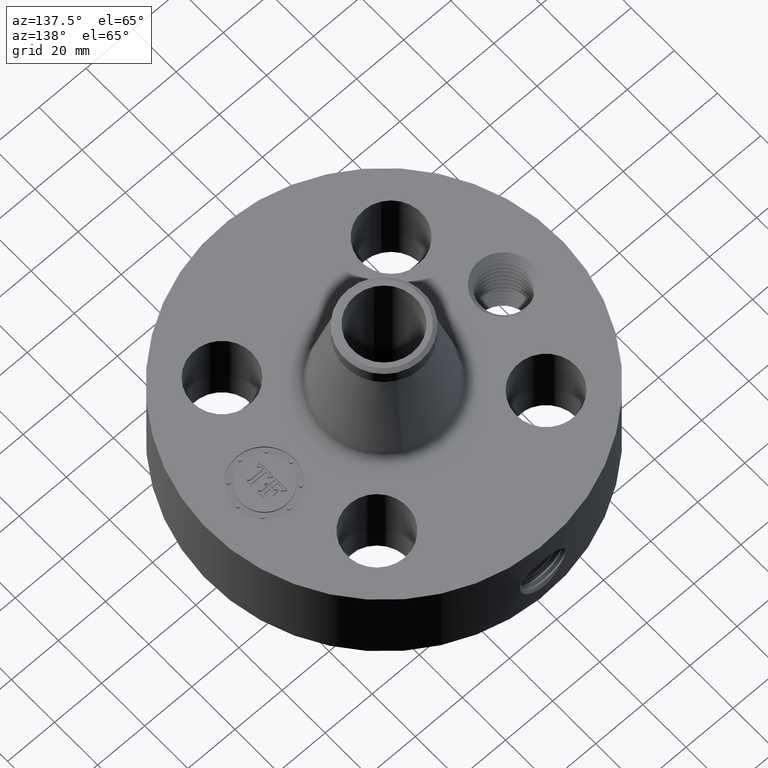
[diagram: clean part render]
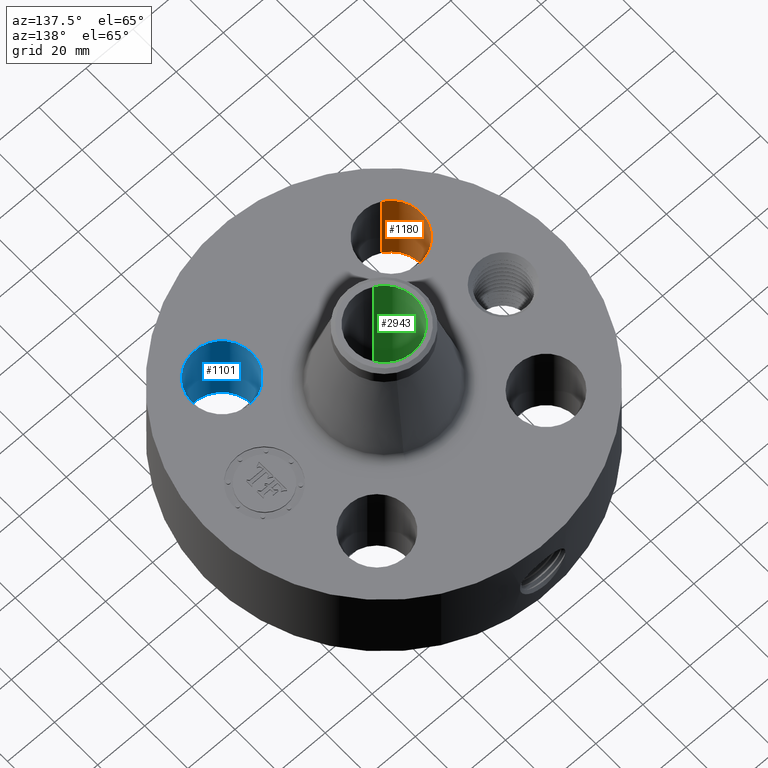
[diagram: same view with three faces highlighted in distinct colors, each labeled with its STEP entity id]
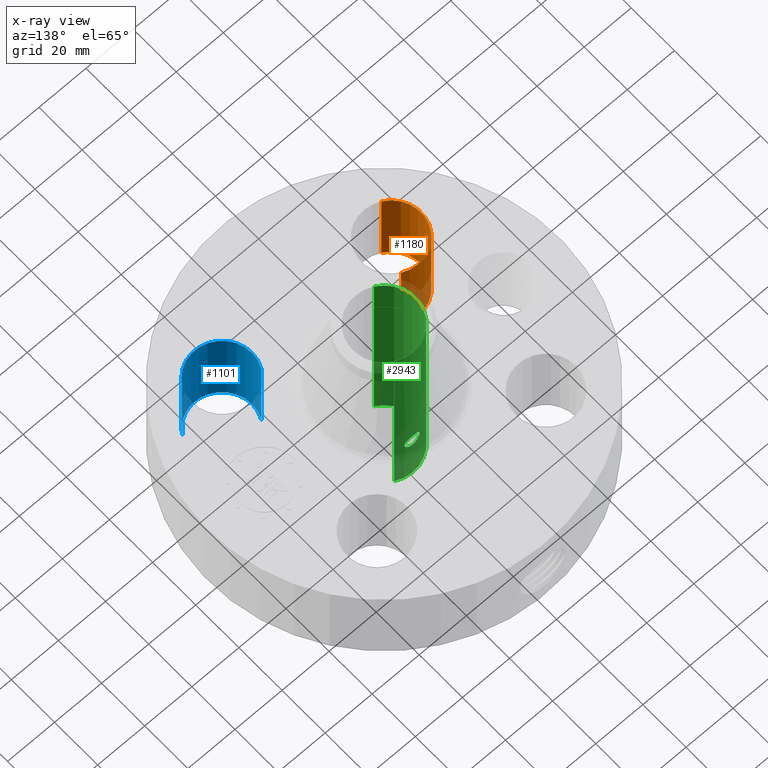
[diagram: x-ray of the same camera — body ghosted, the three highlighted faces saturated]
A machine part, auxiliary view with three faces highlighted in distinct colors.
The next image is the same camera in x-ray (body ghosted, the three faces saturated) — at least one of them is partly hidden behind the body in this view.
Their STEP definitions:

[orange] entity #1180 — the highlighted cylindrical surface (partial cylindrical patch) has radius 12.7 mm, axis along (0, -0, -1).
#272=AXIS2_PLACEMENT_3D('Circle Axis2P3D',#270,#271,$) ;
#511=AXIS2_PLACEMENT_3D('Circle Axis2P3D',#509,#510,$) ;
#1155=AXIS2_PLACEMENT_3D('Cylinder Axis2P3D',#1152,#1153,#1154) ;
#265=CARTESIAN_POINT('Vertex',(-1.17450079308,-0.975422281432,0.250000000001)) ;
#267=CARTESIAN_POINT('Vertex',(-1.65392633168,-1.85300484333,0.250000000001)) ;
#270=CARTESIAN_POINT('Axis2P3D Location',(-1.41421356238,-1.41421356238,0.250000000001)) ;
#509=CARTESIAN_POINT('Axis2P3D Location',(-1.41421356238,-1.41421356238,1.75000000001)) ;
#513=CARTESIAN_POINT('Vertex',(-1.65392633168,-1.85300484333,1.75000000001)) ;
#515=CARTESIAN_POINT('Vertex',(-1.17450079308,-0.975422281432,1.75000000001)) ;
#1152=CARTESIAN_POINT('Axis2P3D Location',(-1.41421356238,-1.41421356238,1.74606299213)) ;
#1157=CARTESIAN_POINT('Line Origine',(-1.17450079308,-0.975422281432,1.)) ;
#1162=CARTESIAN_POINT('Line Origine',(-1.65392633168,-1.85300484333,1.)) ;
#271=DIRECTION('Axis2P3D Direction',(0.,0.,-0.0393700787402)) ;
#510=DIRECTION('Axis2P3D Direction',(0.,0.,-0.0393700787402)) ;
#1153=DIRECTION('Axis2P3D Direction',(0.,-0.,-0.0393700787402)) ;
#1154=DIRECTION('Axis2P3D XDirection',(-0.0188750212049,-0.0345504945626,0.)) ;
#1158=DIRECTION('Vector Direction',(0.,0.,-0.0393700787402)) ;
#1163=DIRECTION('Vector Direction',(0.,0.,-0.0393700787402)) ;
#1159=VECTOR('Line Direction',#1158,0.0393700787402) ;
#1164=VECTOR('Line Direction',#1163,0.0393700787402) ;
#1175=ORIENTED_EDGE('',*,*,#1166,.F.) ;
#1176=ORIENTED_EDGE('',*,*,#274,.T.) ;
#1177=ORIENTED_EDGE('',*,*,#1161,.T.) ;
#1178=ORIENTED_EDGE('',*,*,#517,.F.) ;
#1180=ADVANCED_FACE('PartBody',(#1179),#1156,.F.) ;
#273=CIRCLE('generated circle',#272,0.500000000002) ;
#512=CIRCLE('generated circle',#511,0.500000000002) ;
#1156=CYLINDRICAL_SURFACE('generated cylinder',#1155,0.500000000002) ;
#274=EDGE_CURVE('',#268,#266,#273,.T.) ;
#517=EDGE_CURVE('',#514,#516,#512,.T.) ;
#1161=EDGE_CURVE('',#266,#516,#1160,.F.) ;
#1166=EDGE_CURVE('',#268,#514,#1165,.F.) ;
#1174=EDGE_LOOP('',(#1175,#1176,#1177,#1178)) ;
#1179=FACE_OUTER_BOUND('',#1174,.T.) ;
#1160=LINE('Line',#1157,#1159) ;
#1165=LINE('Line',#1162,#1164) ;
#266=VERTEX_POINT('',#265) ;
#268=VERTEX_POINT('',#267) ;
#514=VERTEX_POINT('',#513) ;
#516=VERTEX_POINT('',#515) ;

[blue] entity #1101 — the highlighted cylindrical surface (partial cylindrical patch) has radius 12.7 mm, axis along (0, -0, -1).
#227=AXIS2_PLACEMENT_3D('Circle Axis2P3D',#225,#226,$) ;
#484=AXIS2_PLACEMENT_3D('Circle Axis2P3D',#482,#483,$) ;
#1083=AXIS2_PLACEMENT_3D('Cylinder Axis2P3D',#1080,#1081,#1082) ;
#225=CARTESIAN_POINT('Axis2P3D Location',(1.41421356238,-1.41421356238,0.250000000001)) ;
#229=CARTESIAN_POINT('Vertex',(1.85300484333,-1.65392633168,0.250000000001)) ;
#231=CARTESIAN_POINT('Vertex',(0.975422281432,-1.17450079308,0.250000000001)) ;
#477=CARTESIAN_POINT('Vertex',(0.975422281432,-1.17450079308,1.75000000001)) ;
#479=CARTESIAN_POINT('Vertex',(1.85300484333,-1.65392633168,1.75000000001)) ;
#482=CARTESIAN_POINT('Axis2P3D Location',(1.41421356238,-1.41421356238,1.75000000001)) ;
#1080=CARTESIAN_POINT('Axis2P3D Location',(1.41421356238,-1.41421356238,1.74606299213)) ;
#1085=CARTESIAN_POINT('Line Origine',(1.85300484333,-1.65392633168,1.)) ;
#1090=CARTESIAN_POINT('Line Origine',(0.975422281432,-1.17450079308,1.)) ;
#226=DIRECTION('Axis2P3D Direction',(0.,0.,-0.0393700787402)) ;
#483=DIRECTION('Axis2P3D Direction',(0.,0.,-0.0393700787402)) ;
#1081=DIRECTION('Axis2P3D Direction',(0.,-0.,-0.0393700787402)) ;
#1082=DIRECTION('Axis2P3D XDirection',(-0.0345504945626,0.0188750212049,0.)) ;
#1086=DIRECTION('Vector Direction',(0.,0.,-0.0393700787402)) ;
#1091=DIRECTION('Vector Direction',(0.,0.,-0.0393700787402)) ;
#1087=VECTOR('Line Direction',#1086,0.0393700787402) ;
#1092=VECTOR('Line Direction',#1091,0.0393700787402) ;
#1096=ORIENTED_EDGE('',*,*,#1089,.F.) ;
#1097=ORIENTED_EDGE('',*,*,#233,.T.) ;
#1098=ORIENTED_EDGE('',*,*,#1094,.T.) ;
#1099=ORIENTED_EDGE('',*,*,#486,.F.) ;
#1101=ADVANCED_FACE('PartBody',(#1100),#1084,.F.) ;
#228=CIRCLE('generated circle',#227,0.500000000002) ;
#485=CIRCLE('generated circle',#484,0.500000000002) ;
#1084=CYLINDRICAL_SURFACE('generated cylinder',#1083,0.500000000002) ;
#233=EDGE_CURVE('',#230,#232,#228,.T.) ;
#486=EDGE_CURVE('',#480,#478,#485,.T.) ;
#1089=EDGE_CURVE('',#230,#480,#1088,.F.) ;
#1094=EDGE_CURVE('',#232,#478,#1093,.F.) ;
#1095=EDGE_LOOP('',(#1096,#1097,#1098,#1099)) ;
#1100=FACE_OUTER_BOUND('',#1095,.T.) ;
#1088=LINE('Line',#1085,#1087) ;
#1093=LINE('Line',#1090,#1092) ;
#230=VERTEX_POINT('',#229) ;
#232=VERTEX_POINT('',#231) ;
#478=VERTEX_POINT('',#477) ;
#480=VERTEX_POINT('',#479) ;

[green] entity #2943 — the highlighted cylindrical surface (partial cylindrical patch) has radius 13.3223 mm, axis along (0, 0, -1).
#2132=AXIS2_PLACEMENT_3D('Circle Axis2P3D',#2130,#2131,$) ;
#2820=AXIS2_PLACEMENT_3D('Cylinder Axis2P3D',#2817,#2818,#2819) ;
#2892=AXIS2_PLACEMENT_3D('Circle Axis2P3D',#2890,#2891,$) ;
#2125=CARTESIAN_POINT('Vertex',(0.251458694999,0.460292053713,-2.79741234551E-015)) ;
#2127=CARTESIAN_POINT('Vertex',(-0.251458694999,-0.460292053713,-2.79741234551E-015)) ;
#2130=CARTESIAN_POINT('Axis2P3D Location',(0.,0.,0.)) ;
#2817=CARTESIAN_POINT('Axis2P3D Location',(0.,0.,1.75000000001)) ;
#2826=CARTESIAN_POINT('Vertex',(0.251458694999,0.460292053713,3.50000000001)) ;
#2828=CARTESIAN_POINT('Vertex',(-0.251458694999,-0.460292053713,3.50000000001)) ;
#2831=CARTESIAN_POINT('Line Origine',(0.251458694999,0.460292053713,1.75000000001)) ;
#2836=CARTESIAN_POINT('Line Origine',(-0.251458694999,-0.460292053713,1.75000000001)) ;
#2890=CARTESIAN_POINT('Axis2P3D Location',(0.,0.,3.50000000001)) ;
#2902=CARTESIAN_POINT('Control Point',(0.109697820237,0.512900222497,0.99992819233)) ;
#2903=CARTESIAN_POINT('Control Point',(0.103067995137,0.514318192952,1.01206400577)) ;
#2904=CARTESIAN_POINT('Control Point',(0.0947719695393,0.5159805034,1.02326099615)) ;
#2905=CARTESIAN_POINT('Control Point',(0.0849803702633,0.51773919703,1.03323331604)) ;
#2906=CARTESIAN_POINT('Control Point',(0.0538199881046,0.522434964879,1.05721526035)) ;
#2907=CARTESIAN_POINT('Control Point',(0.0149493305919,0.525251537098,1.06806916629)) ;
#2908=CARTESIAN_POINT('Control Point',(-0.0116326804202,0.525346375616,1.06841720931)) ;
#2909=CARTESIAN_POINT('Control Point',(-0.0508447925142,0.522756079785,1.05854858797)) ;
#2910=CARTESIAN_POINT('Control Point',(-0.08265235641,0.518124437442,1.03531611328)) ;
#2911=CARTESIAN_POINT('Control Point',(-0.0927261783311,0.516359982355,1.02554648395)) ;
#2912=CARTESIAN_POINT('Control Point',(-0.117112916641,0.511563161852,0.994230956015)) ;
#2913=CARTESIAN_POINT('Control Point',(-0.128164416092,0.508593381511,0.954995906299)) ;
#2914=CARTESIAN_POINT('Control Point',(-0.128487390483,0.508500379865,0.928038397611)) ;
#2915=CARTESIAN_POINT('Control Point',(-0.121927405503,0.510284589305,0.902457913349)) ;
#2916=CARTESIAN_POINT('Control Point',(-0.109697820237,0.512900222497,0.880071807678)) ;
#2917=CARTESIAN_POINT('Vertex',(0.109697820237,0.512900222497,0.99992819233)) ;
#2919=CARTESIAN_POINT('Vertex',(-0.109697820237,0.512900222497,0.880071807678)) ;
#2923=CARTESIAN_POINT('Control Point',(0.109697820237,0.512900222497,0.99992819233)) ;
#2924=CARTESIAN_POINT('Control Point',(0.11623428064,0.51150222065,0.987963281817)) ;
#2925=CARTESIAN_POINT('Control Point',(0.121151116863,0.510341730082,0.975085839107)) ;
#2926=CARTESIAN_POINT('Control Point',(0.12427729477,0.509563203993,0.961579940317)) ;
#2927=CARTESIAN_POINT('Control Point',(0.127559697454,0.508761572469,0.924791144261)) ;
#2928=CARTESIAN_POINT('Control Point',(0.117478559259,0.511227660568,0.888670959166)) ;
#2929=CARTESIAN_POINT('Control Point',(0.10606381,0.513973823366,0.868078037782)) ;
#2930=CARTESIAN_POINT('Control Point',(0.0747703859201,0.520006013884,0.833400530519)) ;
#2931=CARTESIAN_POINT('Control Point',(0.0313370516034,0.524299170456,0.815652108619)) ;
#2932=CARTESIAN_POINT('Control Point',(0.00765580743065,0.52527137436,0.811958680857)) ;
#2933=CARTESIAN_POINT('Control Point',(-0.0355699630464,0.524258134677,0.815523495339)) ;
#2934=CARTESIAN_POINT('Control Point',(-0.0731881901044,0.519775727891,0.835943268942)) ;
#2935=CARTESIAN_POINT('Control Point',(-0.0882205331275,0.517280293423,0.848357746271)) ;
#2936=CARTESIAN_POINT('Control Point',(-0.10054648706,0.51485748681,0.86332040466)) ;
#2937=CARTESIAN_POINT('Control Point',(-0.109697820237,0.512900222497,0.880071807678)) ;
#2131=DIRECTION('Axis2P3D Direction',(0.,0.,-0.0393700787402)) ;
#2818=DIRECTION('Axis2P3D Direction',(0.,0.,-0.0393700787402)) ;
#2819=DIRECTION('Axis2P3D XDirection',(-0.0188750212049,-0.0345504945626,0.)) ;
#2832=DIRECTION('Vector Direction',(0.,0.,-0.0393700787402)) ;
#2837=DIRECTION('Vector Direction',(0.,0.,-0.0393700787402)) ;
#2891=DIRECTION('Axis2P3D Direction',(0.,0.,-0.0393700787402)) ;
#2833=VECTOR('Line Direction',#2832,0.0393700787402) ;
#2838=VECTOR('Line Direction',#2837,0.0393700787402) ;
#2896=ORIENTED_EDGE('',*,*,#2894,.F.) ;
#2897=ORIENTED_EDGE('',*,*,#2840,.T.) ;
#2898=ORIENTED_EDGE('',*,*,#2134,.T.) ;
#2899=ORIENTED_EDGE('',*,*,#2835,.F.) ;
#2940=ORIENTED_EDGE('',*,*,#2921,.F.) ;
#2941=ORIENTED_EDGE('',*,*,#2938,.T.) ;
#2942=FACE_BOUND('',#2939,.T.) ;
#2943=ADVANCED_FACE('PartBody',(#2900,#2942),#2821,.F.) ;
#2901=B_SPLINE_CURVE_WITH_KNOTS('',5,(#2902,#2903,#2904,#2905,#2906,#2907,#2908,#2909,#2910,#2911,#2912,#2913,#2914,#2915,#2916),.UNSPECIFIED.,.F.,.U.,(6,3,3,3,6),(0.,2.49672561365,7.04499234144,9.55164643771,14.157185546),.UNSPECIFIED.) ;
#2922=B_SPLINE_CURVE_WITH_KNOTS('',5,(#2923,#2924,#2925,#2926,#2927,#2928,#2929,#2930,#2931,#2932,#2933,#2934,#2935,#2936,#2937),.UNSPECIFIED.,.F.,.U.,(6,3,3,3,6),(0.,2.46156540585,6.57020743698,10.7112749776,14.1575752341),.UNSPECIFIED.) ;
#2133=CIRCLE('generated circle',#2132,0.524500000002) ;
#2893=CIRCLE('generated circle',#2892,0.524500000002) ;
#2821=CYLINDRICAL_SURFACE('generated cylinder',#2820,0.524500000002) ;
#2134=EDGE_CURVE('',#2128,#2126,#2133,.T.) ;
#2835=EDGE_CURVE('',#2827,#2126,#2834,.T.) ;
#2840=EDGE_CURVE('',#2829,#2128,#2839,.T.) ;
#2894=EDGE_CURVE('',#2829,#2827,#2893,.T.) ;
#2921=EDGE_CURVE('',#2918,#2920,#2901,.T.) ;
#2938=EDGE_CURVE('',#2918,#2920,#2922,.T.) ;
#2895=EDGE_LOOP('',(#2896,#2897,#2898,#2899)) ;
#2939=EDGE_LOOP('',(#2940,#2941)) ;
#2900=FACE_OUTER_BOUND('',#2895,.T.) ;
#2834=LINE('Line',#2831,#2833) ;
#2839=LINE('Line',#2836,#2838) ;
#2126=VERTEX_POINT('',#2125) ;
#2128=VERTEX_POINT('',#2127) ;
#2827=VERTEX_POINT('',#2826) ;
#2829=VERTEX_POINT('',#2828) ;
#2918=VERTEX_POINT('',#2917) ;
#2920=VERTEX_POINT('',#2919) ;